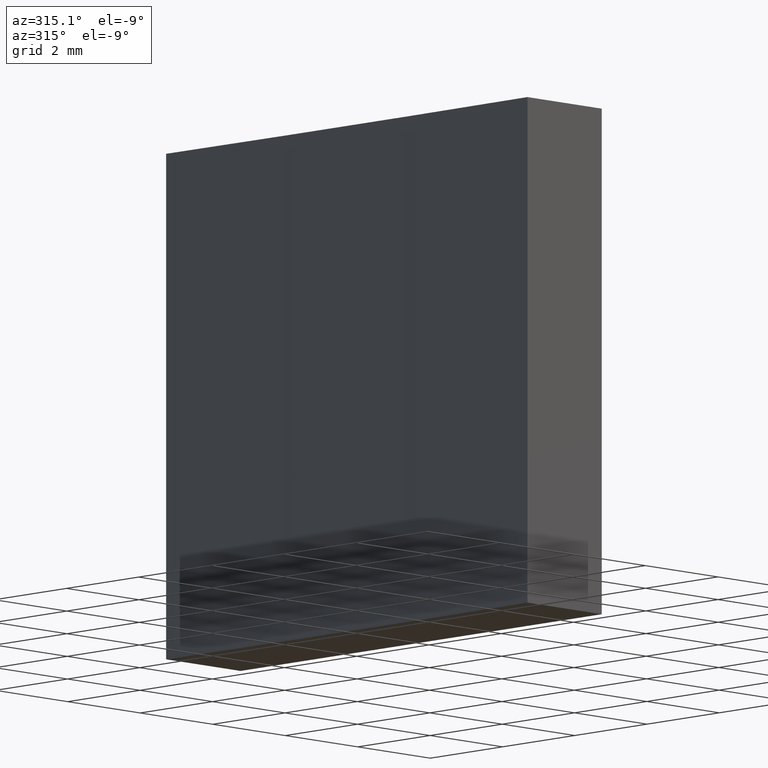
[diagram: clean part render]
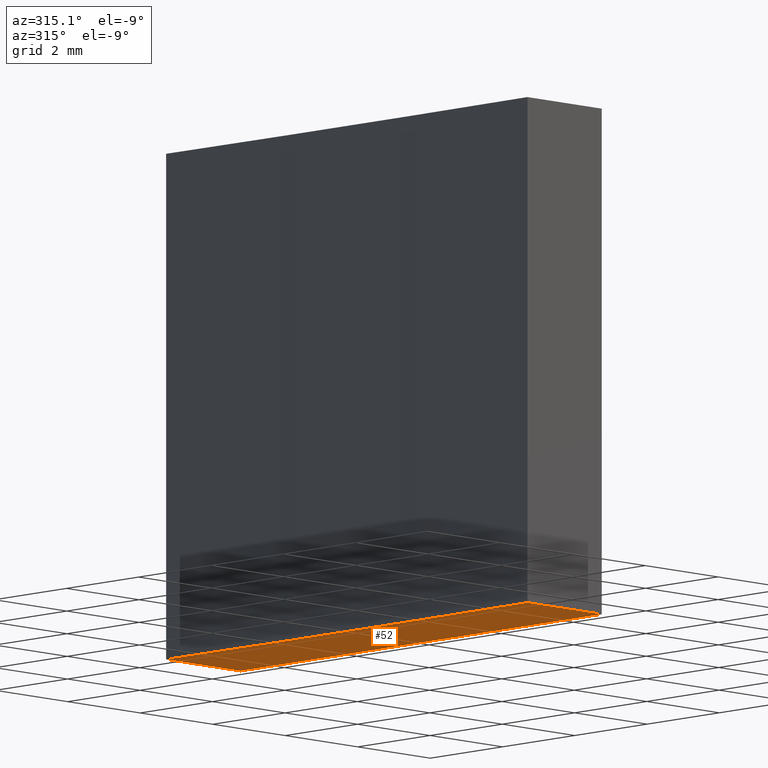
[diagram: same view with one face highlighted and labeled with its STEP entity id]
A machine part, auxiliary view. The second image highlights one B-rep face of the part: STEP entity #52.
In plain terms, the highlighted planar face has unit normal (0, 0, 1).
Its self-contained STEP definition (entity closure, byte-faithful):
#5 = VERTEX_POINT ( 'NONE', #122 ) ;
#7 = CARTESIAN_POINT ( 'NONE',  ( 124.5901433497258921, 93.86223563107158441, 0.000000000000000000 ) ) ;
#14 = DIRECTION ( 'NONE',  ( 1.000000000000000000, 0.000000000000000000, -0.000000000000000000 ) ) ;
#20 = EDGE_CURVE ( 'NONE', #5, #26, #126, .T. ) ;
#26 = VERTEX_POINT ( 'NONE', #214 ) ;
#52 = ADVANCED_FACE ( 'NONE', ( #85 ), #106, .F. ) ;
#56 = ORIENTED_EDGE ( 'NONE', *, *, #181, .F. ) ;
#57 = VERTEX_POINT ( 'NONE', #110 ) ;
#59 = CIRCLE ( 'NONE', #154, 258.4999999999999432 ) ;
#75 = LINE ( 'NONE', #166, #196 ) ;
#82 = EDGE_LOOP ( 'NONE', ( #56, #142, #216, #231 ) ) ;
#85 = FACE_OUTER_BOUND ( 'NONE', #82, .T. ) ;
#96 = CARTESIAN_POINT ( 'NONE',  ( 124.5901433497259063, 83.86223563107159862, 0.000000000000000000 ) ) ;
#97 = VERTEX_POINT ( 'NONE', #234 ) ;
#104 = DIRECTION ( 'NONE',  ( -1.000000000000000000, -0.000000000000000000, -0.000000000000000000 ) ) ;
#106 = PLANE ( 'NONE',  #127 ) ;
#110 = CARTESIAN_POINT ( 'NONE',  ( 126.6401433497259035, 83.86223563107159862, 0.000000000000000000 ) ) ;
#121 = LINE ( 'NONE', #96, #213 ) ;
#122 = CARTESIAN_POINT ( 'NONE',  ( 126.6401433497259035, 93.86223563107158441, 0.000000000000000000 ) ) ;
#126 = LINE ( 'NONE', #7, #233 ) ;
#127 = AXIS2_PLACEMENT_3D ( 'NONE', #157, #232, #14 ) ;
#142 = ORIENTED_EDGE ( 'NONE', *, *, #20, .F. ) ;
#154 = AXIS2_PLACEMENT_3D ( 'NONE', #228, #222, #162 ) ;
#157 = CARTESIAN_POINT ( 'NONE',  ( -133.8614962271976196, 88.86223563107161283, 0.000000000000000000 ) ) ;
#162 = DIRECTION ( 'NONE',  ( 1.000000000000000000, 0.000000000000000000, 0.000000000000000000 ) ) ;
#164 = DIRECTION ( 'NONE',  ( -0.000000000000000000, 1.000000000000000000, -0.000000000000000000 ) ) ;
#166 = CARTESIAN_POINT ( 'NONE',  ( 126.6401433497259035, 93.86223563107158441, 0.000000000000000000 ) ) ;
#181 = EDGE_CURVE ( 'NONE', #26, #97, #59, .T. ) ;
#194 = EDGE_CURVE ( 'NONE', #57, #5, #75, .T. ) ;
#196 = VECTOR ( 'NONE', #164, 1000.000000000000000 ) ;
#202 = DIRECTION ( 'NONE',  ( 1.000000000000000000, 0.000000000000000000, 0.000000000000000000 ) ) ;
#213 = VECTOR ( 'NONE', #202, 1000.000000000000000 ) ;
#214 = CARTESIAN_POINT ( 'NONE',  ( 124.5901433497258921, 93.86223563107158441, 0.000000000000000000 ) ) ;
#216 = ORIENTED_EDGE ( 'NONE', *, *, #194, .F. ) ;
#222 = DIRECTION ( 'NONE',  ( -0.000000000000000000, -0.000000000000000000, -1.000000000000000000 ) ) ;
#228 = CARTESIAN_POINT ( 'NONE',  ( -133.8614962271976196, 88.86223563107161283, 0.000000000000000000 ) ) ;
#231 = ORIENTED_EDGE ( 'NONE', *, *, #239, .F. ) ;
#232 = DIRECTION ( 'NONE',  ( 0.000000000000000000, 0.000000000000000000, 1.000000000000000000 ) ) ;
#233 = VECTOR ( 'NONE', #104, 1000.000000000000000 ) ;
#234 = CARTESIAN_POINT ( 'NONE',  ( 124.5901433497259063, 83.86223563107159862, 0.000000000000000000 ) ) ;
#239 = EDGE_CURVE ( 'NONE', #97, #57, #121, .T. ) ;